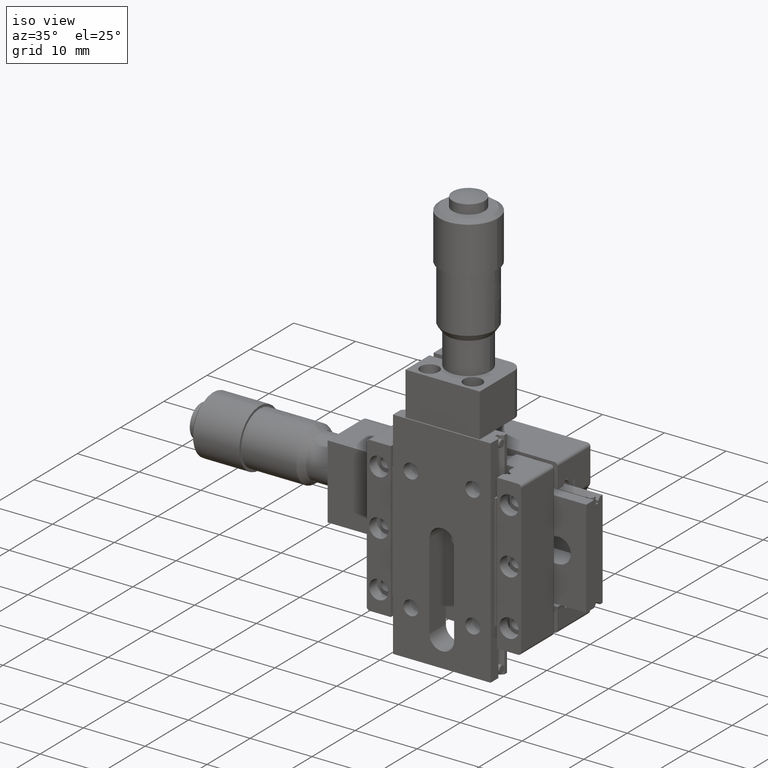
[diagram: clean part render]
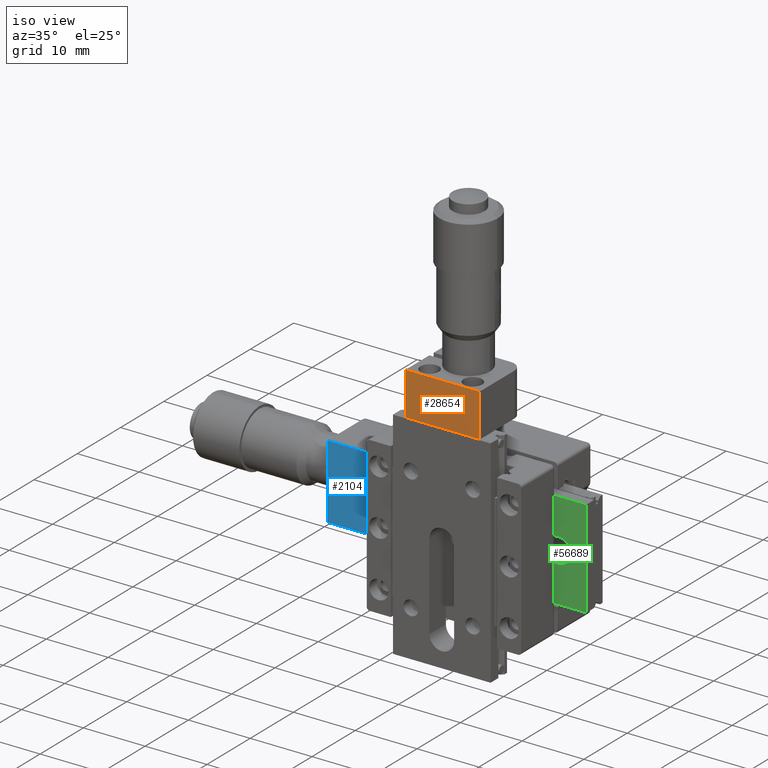
[diagram: same view with three faces highlighted in distinct colors, each labeled with its STEP entity id]
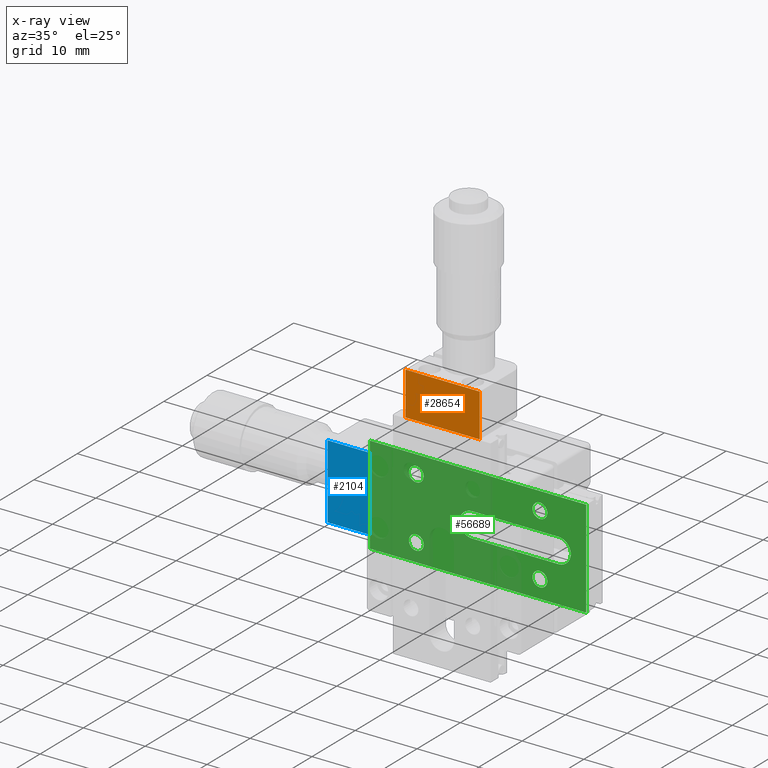
[diagram: x-ray of the same camera — body ghosted, the three highlighted faces saturated]
A machine part, iso view with three faces highlighted in distinct colors.
The next image is the same camera in x-ray (body ghosted, the three faces saturated) — at least one of them is partly hidden behind the body in this view.
Their STEP definitions:

[orange] entity #28654 — the highlighted planar face has unit normal (0, 1, -0).
#1008 = ORIENTED_EDGE ( 'NONE', *, *, #50982, .T. ) ;
#2141 = VECTOR ( 'NONE', #4461, 1000.000000000000000 ) ;
#3374 = CARTESIAN_POINT ( 'NONE',  ( 6.000000000000872200, 0.1999999999999917700, 17.50000000000000000 ) ) ;
#4461 = DIRECTION ( 'NONE',  ( -1.000000000000000000, 6.111896442571320000E-016, 5.551115123125776800E-016 ) ) ;
#5970 = EDGE_LOOP ( 'NONE', ( #27107, #18701, #9006, #1008 ) ) ;
#8408 = CARTESIAN_POINT ( 'NONE',  ( -5.999999999999139400, 0.2000000000000076400, 24.50000000000000000 ) ) ;
#9006 = ORIENTED_EDGE ( 'NONE', *, *, #17663, .F. ) ;
#12023 = CARTESIAN_POINT ( 'NONE',  ( 6.000000000000872200, 0.1999999999999917700, 17.50000000000000000 ) ) ;
#12375 = CARTESIAN_POINT ( 'NONE',  ( -5.999999999999128700, 0.2000000000000064200, 17.50000000000000000 ) ) ;
#16124 = VECTOR ( 'NONE', #50874, 1000.000000000000000 ) ;
#17001 = LINE ( 'NONE', #12375, #16124 ) ;
#17663 = EDGE_CURVE ( 'NONE', #21009, #51436, #22227, .T. ) ;
#18078 = LINE ( 'NONE', #12023, #35946 ) ;
#18701 = ORIENTED_EDGE ( 'NONE', *, *, #59726, .F. ) ;
#19355 = DIRECTION ( 'NONE',  ( 6.111896442571317000E-016, 1.000000000000000000, -5.082140893937402600E-016 ) ) ;
#19786 = CARTESIAN_POINT ( 'NONE',  ( -5.999999999999128700, 0.2000000000000064200, 17.50000000000000000 ) ) ;
#19823 = DIRECTION ( 'NONE',  ( 1.000000000000000000, -6.111896442571320000E-016, -5.551115123125776800E-016 ) ) ;
#21009 = VERTEX_POINT ( 'NONE', #32264 ) ;
#22227 = LINE ( 'NONE', #3374, #40044 ) ;
#27107 = ORIENTED_EDGE ( 'NONE', *, *, #62917, .T. ) ;
#28654 = ADVANCED_FACE ( 'NONE', ( #30881 ), #40952, .F. ) ;
#29341 = LINE ( 'NONE', #42016, #2141 ) ;
#30881 = FACE_OUTER_BOUND ( 'NONE', #5970, .T. ) ;
#32264 = CARTESIAN_POINT ( 'NONE',  ( 6.000000000000872200, 0.1999999999999917700, 17.50000000000000000 ) ) ;
#35261 = CARTESIAN_POINT ( 'NONE',  ( 6.000000000000872200, 0.1999999999999917700, 17.50000000000000000 ) ) ;
#35946 = VECTOR ( 'NONE', #38890, 1000.000000000000000 ) ;
#38199 = VERTEX_POINT ( 'NONE', #8408 ) ;
#38890 = DIRECTION ( 'NONE',  ( -2.775557561562896800E-016, -1.142172911347805800E-016, 1.000000000000000000 ) ) ;
#40044 = VECTOR ( 'NONE', #41421, 1000.000000000000000 ) ;
#40952 = PLANE ( 'NONE',  #63627 ) ;
#41421 = DIRECTION ( 'NONE',  ( -1.000000000000000000, 6.111896442571320000E-016, 5.551115123125776800E-016 ) ) ;
#42016 = CARTESIAN_POINT ( 'NONE',  ( 6.000000000000860600, 0.2000000000000051500, 24.50000000000000000 ) ) ;
#50874 = DIRECTION ( 'NONE',  ( -2.775557561562896800E-016, -1.142172911347805800E-016, 1.000000000000000000 ) ) ;
#50982 = EDGE_CURVE ( 'NONE', #21009, #62535, #18078, .T. ) ;
#51436 = VERTEX_POINT ( 'NONE', #19786 ) ;
#59726 = EDGE_CURVE ( 'NONE', #51436, #38199, #17001, .T. ) ;
#60218 = CARTESIAN_POINT ( 'NONE',  ( 6.000000000000860600, 0.2000000000000051500, 24.50000000000000000 ) ) ;
#62535 = VERTEX_POINT ( 'NONE', #60218 ) ;
#62917 = EDGE_CURVE ( 'NONE', #62535, #38199, #29341, .T. ) ;
#63627 = AXIS2_PLACEMENT_3D ( 'NONE', #35261, #19355, #19823 ) ;

[blue] entity #2104 — the highlighted planar face has unit normal (0, 1, 0).
#610 = DIRECTION ( 'NONE',  ( -5.551115123125776800E-016, 8.627508404916919900E-016, -1.000000000000000000 ) ) ;
#1659 = EDGE_CURVE ( 'NONE', #42289, #34482, #19737, .T. ) ;
#2104 = ADVANCED_FACE ( 'NONE', ( #6884 ), #29514, .F. ) ;
#6173 = VERTEX_POINT ( 'NONE', #19605 ) ;
#6884 = FACE_OUTER_BOUND ( 'NONE', #19440, .T. ) ;
#8687 = EDGE_CURVE ( 'NONE', #34482, #68753, #18601, .T. ) ;
#12222 = LINE ( 'NONE', #60789, #64954 ) ;
#12934 = DIRECTION ( 'NONE',  ( 3.854263915582015400E-016, 1.000000000000000000, 8.627508404916917900E-016 ) ) ;
#18226 = CARTESIAN_POINT ( 'NONE',  ( -17.49999999999914000, 8.600000000000015600, 6.000000000000874000 ) ) ;
#18601 = LINE ( 'NONE', #33190, #33865 ) ;
#19440 = EDGE_LOOP ( 'NONE', ( #25942, #43772, #46915, #55277 ) ) ;
#19605 = CARTESIAN_POINT ( 'NONE',  ( -17.49999999999914000, 8.600000000000033400, -5.999999999999126900 ) ) ;
#19737 = LINE ( 'NONE', #66222, #32482 ) ;
#24513 = EDGE_CURVE ( 'NONE', #42289, #6173, #25935, .T. ) ;
#25935 = LINE ( 'NONE', #47043, #51472 ) ;
#25942 = ORIENTED_EDGE ( 'NONE', *, *, #8687, .T. ) ;
#28445 = EDGE_CURVE ( 'NONE', #6173, #68753, #12222, .T. ) ;
#29514 = PLANE ( 'NONE',  #58976 ) ;
#32054 = CARTESIAN_POINT ( 'NONE',  ( -24.49999999999914000, 8.600000000000028100, 6.000000000000862400 ) ) ;
#32482 = VECTOR ( 'NONE', #44391, 1000.000000000000000 ) ;
#33190 = CARTESIAN_POINT ( 'NONE',  ( -24.49999999999914000, 8.600000000000028100, 6.000000000000862400 ) ) ;
#33865 = VECTOR ( 'NONE', #610, 1000.000000000000000 ) ;
#34482 = VERTEX_POINT ( 'NONE', #32054 ) ;
#41811 = DIRECTION ( 'NONE',  ( -5.551115123125776800E-016, 8.627508404916919900E-016, -1.000000000000000000 ) ) ;
#42289 = VERTEX_POINT ( 'NONE', #18226 ) ;
#43772 = ORIENTED_EDGE ( 'NONE', *, *, #28445, .F. ) ;
#44391 = DIRECTION ( 'NONE',  ( -1.000000000000000000, -1.955095636017512700E-016, -2.220446049250319500E-016 ) ) ;
#46915 = ORIENTED_EDGE ( 'NONE', *, *, #24513, .F. ) ;
#47043 = CARTESIAN_POINT ( 'NONE',  ( -17.49999999999914000, 8.600000000000015600, 6.000000000000874000 ) ) ;
#50351 = DIRECTION ( 'NONE',  ( -1.000000000000000000, -1.955095636017512700E-016, -2.220446049250319500E-016 ) ) ;
#50857 = CARTESIAN_POINT ( 'NONE',  ( -24.49999999999914000, 8.600000000000033400, -5.999999999999137600 ) ) ;
#50973 = DIRECTION ( 'NONE',  ( 5.551115123125776800E-016, -8.627508404916919900E-016, 1.000000000000000000 ) ) ;
#51472 = VECTOR ( 'NONE', #41811, 1000.000000000000000 ) ;
#55277 = ORIENTED_EDGE ( 'NONE', *, *, #1659, .T. ) ;
#58976 = AXIS2_PLACEMENT_3D ( 'NONE', #67781, #12934, #50973 ) ;
#60789 = CARTESIAN_POINT ( 'NONE',  ( -17.49999999999914000, 8.600000000000033400, -5.999999999999126900 ) ) ;
#64954 = VECTOR ( 'NONE', #50351, 1000.000000000000000 ) ;
#66222 = CARTESIAN_POINT ( 'NONE',  ( -17.49999999999914000, 8.600000000000015600, 6.000000000000874000 ) ) ;
#67781 = CARTESIAN_POINT ( 'NONE',  ( -17.49999999999914000, 8.600000000000015600, 6.000000000000874000 ) ) ;
#68753 = VERTEX_POINT ( 'NONE', #50857 ) ;

[green] entity #56689 — the highlighted planar face has unit normal (-0, 1, 0).
#176 = VERTEX_POINT ( 'NONE', #33581 ) ;
#1333 = VECTOR ( 'NONE', #59519, 1000.000000000000000 ) ;
#1708 = CARTESIAN_POINT ( 'NONE',  ( 10.00000000000087000, 8.400000000000050100, 5.000000000000000000 ) ) ;
#1931 = VERTEX_POINT ( 'NONE', #6553 ) ;
#1944 = ORIENTED_EDGE ( 'NONE', *, *, #30912, .F. ) ;
#2223 = CARTESIAN_POINT ( 'NONE',  ( -0.9999999999991300300, 8.400000000000027000, -2.000000000000000400 ) ) ;
#2880 = DIRECTION ( 'NONE',  ( -1.264991082945907200E-015, -1.000000000000000000, -2.515611962345600400E-016 ) ) ;
#3918 = DIRECTION ( 'NONE',  ( -1.264991082945907200E-015, -1.000000000000000000, -2.515611962345600400E-016 ) ) ;
#4095 = DIRECTION ( 'NONE',  ( -1.264991082945907200E-015, -1.000000000000000000, -2.515611962345600400E-016 ) ) ;
#4383 = LINE ( 'NONE', #34506, #29008 ) ;
#4459 = DIRECTION ( 'NONE',  ( -1.264991082945907200E-015, -1.000000000000000000, -2.515611962345600400E-016 ) ) ;
#4992 = VERTEX_POINT ( 'NONE', #32957 ) ;
#5041 = EDGE_CURVE ( 'NONE', #61704, #8721, #7967, .T. ) ;
#5046 = CARTESIAN_POINT ( 'NONE',  ( -2.999999999999129600, 8.400000000000028800, -4.304098479295941300E-016 ) ) ;
#5117 = CARTESIAN_POINT ( 'NONE',  ( 11.20000000000087000, 8.400000000000041200, -5.000000000000000000 ) ) ;
#6553 = CARTESIAN_POINT ( 'NONE',  ( -11.19999999999913400, 8.400000000000005700, -5.000000000000003600 ) ) ;
#6880 = DIRECTION ( 'NONE',  ( -1.264991082945907200E-015, -1.000000000000000000, -2.515611962345600400E-016 ) ) ;
#6945 = DIRECTION ( 'NONE',  ( 1.000000000000000000, 1.066477268766921900E-015, 9.293161478447208900E-017 ) ) ;
#7827 = VERTEX_POINT ( 'NONE', #2223 ) ;
#7967 = LINE ( 'NONE', #11106, #66593 ) ;
#8577 = ORIENTED_EDGE ( 'NONE', *, *, #10067, .F. ) ;
#8721 = VERTEX_POINT ( 'NONE', #39579 ) ;
#10067 = EDGE_CURVE ( 'NONE', #51547, #7827, #65667, .T. ) ;
#10167 = AXIS2_PLACEMENT_3D ( 'NONE', #32868, #44064, #11489 ) ;
#10329 = DIRECTION ( 'NONE',  ( 1.000000000000000000, 1.066477268766921900E-015, 2.682842974879733100E-031 ) ) ;
#10748 = CIRCLE ( 'NONE', #37569, 1.999999999999999600 ) ;
#11106 = CARTESIAN_POINT ( 'NONE',  ( -17.54999999999913700, 8.400000000000005700, -7.900000000000000400 ) ) ;
#11158 = VERTEX_POINT ( 'NONE', #65799 ) ;
#11464 = DIRECTION ( 'NONE',  ( 1.000000000000000000, 1.445602896647339500E-015, 0.0000000000000000000 ) ) ;
#11489 = DIRECTION ( 'NONE',  ( 1.000000000000000000, 1.445602896647339500E-015, 0.0000000000000000000 ) ) ;
#11697 = CARTESIAN_POINT ( 'NONE',  ( -0.9999999999991300300, 8.400000000000027000, -9.083761207752584700E-016 ) ) ;
#11881 = CIRCLE ( 'NONE', #58547, 1.199999999999999700 ) ;
#13684 = ORIENTED_EDGE ( 'NONE', *, *, #29733, .F. ) ;
#14376 = ORIENTED_EDGE ( 'NONE', *, *, #5041, .T. ) ;
#14774 = CARTESIAN_POINT ( 'NONE',  ( 8.800000000000871100, 8.400000000000051900, 4.999999999999993800 ) ) ;
#15547 = FACE_BOUND ( 'NONE', #41128, .T. ) ;
#16154 = ORIENTED_EDGE ( 'NONE', *, *, #33558, .F. ) ;
#16308 = EDGE_CURVE ( 'NONE', #67627, #1931, #21930, .T. ) ;
#16562 = EDGE_LOOP ( 'NONE', ( #62001, #8577, #28589, #46146, #40506 ) ) ;
#16849 = AXIS2_PLACEMENT_3D ( 'NONE', #68982, #3918, #41948 ) ;
#17140 = CARTESIAN_POINT ( 'NONE',  ( 10.00000000000086900, 8.400000000000039400, -5.000000000000000000 ) ) ;
#19203 = AXIS2_PLACEMENT_3D ( 'NONE', #53367, #20820, #10329 ) ;
#19892 = CARTESIAN_POINT ( 'NONE',  ( 17.50000000000087000, 8.400000000000048300, 7.900000000000000400 ) ) ;
#20550 = EDGE_CURVE ( 'NONE', #55601, #176, #47454, .T. ) ;
#20820 = DIRECTION ( 'NONE',  ( -1.066477268766921900E-015, 1.000000000000000000, 2.515611962345600400E-016 ) ) ;
#20833 = EDGE_CURVE ( 'NONE', #48000, #21354, #51655, .T. ) ;
#20883 = CARTESIAN_POINT ( 'NONE',  ( 13.00000000000087000, 8.400000000000050100, 8.673617379884072000E-016 ) ) ;
#21262 = VERTEX_POINT ( 'NONE', #62841 ) ;
#21354 = VERTEX_POINT ( 'NONE', #5117 ) ;
#21496 = EDGE_CURVE ( 'NONE', #7827, #55601, #4383, .T. ) ;
#21930 = CIRCLE ( 'NONE', #49854, 1.199999999999999700 ) ;
#22271 = DIRECTION ( 'NONE',  ( 1.000000000000000000, 1.066477268766921900E-015, 2.682842974879733100E-031 ) ) ;
#24031 = FACE_BOUND ( 'NONE', #59979, .T. ) ;
#24202 = CARTESIAN_POINT ( 'NONE',  ( -8.799999999999135600, 8.400000000000005700, -4.999999999999997300 ) ) ;
#24876 = EDGE_LOOP ( 'NONE', ( #55636, #37966 ) ) ;
#26401 = CARTESIAN_POINT ( 'NONE',  ( -9.999999999999134900, 8.400000000000003900, -4.999999999999997300 ) ) ;
#28589 = ORIENTED_EDGE ( 'NONE', *, *, #68594, .F. ) ;
#28616 = EDGE_LOOP ( 'NONE', ( #62158, #14376, #48319, #58065 ) ) ;
#28844 = DIRECTION ( 'NONE',  ( -1.000000000000000000, -1.066477268766921900E-015, -1.548860246407866300E-016 ) ) ;
#28858 = CIRCLE ( 'NONE', #65847, 1.199999999999999700 ) ;
#28898 = VERTEX_POINT ( 'NONE', #39713 ) ;
#29008 = VECTOR ( 'NONE', #6945, 1000.000000000000000 ) ;
#29733 = EDGE_CURVE ( 'NONE', #21354, #48000, #63144, .T. ) ;
#29843 = LINE ( 'NONE', #55084, #37550 ) ;
#30260 = LINE ( 'NONE', #38358, #1333 ) ;
#30912 = EDGE_CURVE ( 'NONE', #21262, #70087, #48289, .T. ) ;
#31860 = CARTESIAN_POINT ( 'NONE',  ( -0.9999999999991300300, 8.400000000000027000, -9.083761207752584700E-016 ) ) ;
#32185 = PLANE ( 'NONE',  #19203 ) ;
#32594 = FACE_OUTER_BOUND ( 'NONE', #28616, .T. ) ;
#32700 = VECTOR ( 'NONE', #57877, 1000.000000000000000 ) ;
#32813 = EDGE_LOOP ( 'NONE', ( #13684, #59669 ) ) ;
#32868 = CARTESIAN_POINT ( 'NONE',  ( -9.999999999999133100, 8.400000000000014600, 5.000000000000002700 ) ) ;
#32957 = CARTESIAN_POINT ( 'NONE',  ( -17.49999999999913300, 8.400000000000002100, 7.900000000000000400 ) ) ;
#33400 = FACE_BOUND ( 'NONE', #24876, .T. ) ;
#33558 = EDGE_CURVE ( 'NONE', #70087, #21262, #51386, .T. ) ;
#33581 = CARTESIAN_POINT ( 'NONE',  ( 13.00000000000087000, 8.400000000000037700, 2.000000000000000900 ) ) ;
#33639 = AXIS2_PLACEMENT_3D ( 'NONE', #60150, #66990, #61763 ) ;
#34506 = CARTESIAN_POINT ( 'NONE',  ( 13.00000000000087000, 8.400000000000051900, -1.999999999999999100 ) ) ;
#34982 = AXIS2_PLACEMENT_3D ( 'NONE', #17140, #44260, #11464 ) ;
#36087 = LINE ( 'NONE', #19892, #32700 ) ;
#37123 = DIRECTION ( 'NONE',  ( 1.000000000000000000, 1.445602896647339500E-015, 0.0000000000000000000 ) ) ;
#37299 = EDGE_CURVE ( 'NONE', #63273, #28898, #28858, .T. ) ;
#37444 = EDGE_CURVE ( 'NONE', #1931, #67627, #11881, .T. ) ;
#37550 = VECTOR ( 'NONE', #28844, 1000.000000000000000 ) ;
#37569 = AXIS2_PLACEMENT_3D ( 'NONE', #11697, #6880, #55853 ) ;
#37966 = ORIENTED_EDGE ( 'NONE', *, *, #37444, .F. ) ;
#38358 = CARTESIAN_POINT ( 'NONE',  ( -17.49999999999913300, 8.400000000000005700, -7.900000000000000400 ) ) ;
#38605 = ORIENTED_EDGE ( 'NONE', *, *, #61532, .F. ) ;
#39579 = CARTESIAN_POINT ( 'NONE',  ( 17.50000000000087000, 8.400000000000051900, -7.900000000000000400 ) ) ;
#39713 = CARTESIAN_POINT ( 'NONE',  ( 11.20000000000087100, 8.400000000000051900, 5.000000000000000000 ) ) ;
#40506 = ORIENTED_EDGE ( 'NONE', *, *, #20550, .F. ) ;
#41128 = EDGE_LOOP ( 'NONE', ( #16154, #1944 ) ) ;
#41948 = DIRECTION ( 'NONE',  ( 1.000000000000000000, 1.445602896647339500E-015, 0.0000000000000000000 ) ) ;
#43241 = CIRCLE ( 'NONE', #55082, 1.199999999999999700 ) ;
#44064 = DIRECTION ( 'NONE',  ( -1.264991082945907200E-015, -1.000000000000000000, -2.515611962345600400E-016 ) ) ;
#44260 = DIRECTION ( 'NONE',  ( -1.264991082945907200E-015, -1.000000000000000000, -2.515611962345600400E-016 ) ) ;
#45338 = FACE_BOUND ( 'NONE', #16562, .T. ) ;
#45714 = DIRECTION ( 'NONE',  ( -1.264991082945907200E-015, -1.000000000000000000, -2.515611962345600400E-016 ) ) ;
#46146 = ORIENTED_EDGE ( 'NONE', *, *, #52179, .F. ) ;
#46246 = DIRECTION ( 'NONE',  ( 1.000000000000000000, 1.445602896647339500E-015, 0.0000000000000000000 ) ) ;
#47454 = CIRCLE ( 'NONE', #63647, 2.000000000000000000 ) ;
#47801 = DIRECTION ( 'NONE',  ( -1.264991082945907200E-015, -1.000000000000000000, -2.515611962345600400E-016 ) ) ;
#47919 = CARTESIAN_POINT ( 'NONE',  ( -8.799999999999133800, 8.400000000000016300, 5.000000000000002700 ) ) ;
#48000 = VERTEX_POINT ( 'NONE', #57660 ) ;
#48289 = CIRCLE ( 'NONE', #33639, 1.199999999999999700 ) ;
#48319 = ORIENTED_EDGE ( 'NONE', *, *, #49758, .F. ) ;
#49758 = EDGE_CURVE ( 'NONE', #11158, #8721, #36087, .T. ) ;
#49854 = AXIS2_PLACEMENT_3D ( 'NONE', #57158, #51707, #46246 ) ;
#49966 = CARTESIAN_POINT ( 'NONE',  ( -17.54999999999913700, 8.400000000000002100, 7.900000000000000400 ) ) ;
#50411 = DIRECTION ( 'NONE',  ( 1.000000000000000000, 1.066477268766921900E-015, 2.682842974879733100E-031 ) ) ;
#50621 = LINE ( 'NONE', #49966, #56522 ) ;
#51386 = CIRCLE ( 'NONE', #10167, 1.199999999999999700 ) ;
#51547 = VERTEX_POINT ( 'NONE', #5046 ) ;
#51655 = CIRCLE ( 'NONE', #16849, 1.199999999999999700 ) ;
#51707 = DIRECTION ( 'NONE',  ( -1.264991082945907200E-015, -1.000000000000000000, -2.515611962345600400E-016 ) ) ;
#52179 = EDGE_CURVE ( 'NONE', #176, #70149, #29843, .T. ) ;
#52587 = CARTESIAN_POINT ( 'NONE',  ( -17.49999999999913300, 8.400000000000005700, -7.900000000000000400 ) ) ;
#53367 = CARTESIAN_POINT ( 'NONE',  ( -17.54999999999913700, 8.400000000000005700, -7.900000000000000400 ) ) ;
#55082 = AXIS2_PLACEMENT_3D ( 'NONE', #67504, #2880, #57069 ) ;
#55084 = CARTESIAN_POINT ( 'NONE',  ( 13.00000000000087000, 8.400000000000037700, 2.000000000000000900 ) ) ;
#55601 = VERTEX_POINT ( 'NONE', #57688 ) ;
#55636 = ORIENTED_EDGE ( 'NONE', *, *, #16308, .F. ) ;
#55853 = DIRECTION ( 'NONE',  ( 1.000000000000000000, 8.673617379884037400E-016, 2.888894916580854200E-031 ) ) ;
#56445 = AXIS2_PLACEMENT_3D ( 'NONE', #31860, #47801, #69380 ) ;
#56522 = VECTOR ( 'NONE', #50411, 1000.000000000000000 ) ;
#56626 = DIRECTION ( 'NONE',  ( 1.000000000000000000, 1.445602896647339500E-015, 0.0000000000000000000 ) ) ;
#56689 = ADVANCED_FACE ( 'NONE', ( #63181, #15547, #45338, #33400, #24031, #32594 ), #32185, .F. ) ;
#56820 = ORIENTED_EDGE ( 'NONE', *, *, #37299, .F. ) ;
#57069 = DIRECTION ( 'NONE',  ( 1.000000000000000000, 1.445602896647339500E-015, 0.0000000000000000000 ) ) ;
#57158 = CARTESIAN_POINT ( 'NONE',  ( -9.999999999999134900, 8.400000000000003900, -4.999999999999997300 ) ) ;
#57660 = CARTESIAN_POINT ( 'NONE',  ( 8.800000000000869300, 8.400000000000041200, -5.000000000000006200 ) ) ;
#57688 = CARTESIAN_POINT ( 'NONE',  ( 13.00000000000087000, 8.400000000000051900, -1.999999999999999100 ) ) ;
#57877 = DIRECTION ( 'NONE',  ( 0.0000000000000000000, 2.515611962345600400E-016, -1.000000000000000000 ) ) ;
#58065 = ORIENTED_EDGE ( 'NONE', *, *, #69435, .F. ) ;
#58547 = AXIS2_PLACEMENT_3D ( 'NONE', #26401, #4095, #37123 ) ;
#58865 = DIRECTION ( 'NONE',  ( 1.000000000000000000, 8.673617379884035500E-016, 2.888894916580853800E-031 ) ) ;
#59309 = CARTESIAN_POINT ( 'NONE',  ( -0.9999999999991295900, 8.400000000000027000, 1.999999999999998700 ) ) ;
#59519 = DIRECTION ( 'NONE',  ( 0.0000000000000000000, -2.515611962345600400E-016, 1.000000000000000000 ) ) ;
#59669 = ORIENTED_EDGE ( 'NONE', *, *, #20833, .F. ) ;
#59979 = EDGE_LOOP ( 'NONE', ( #38605, #56820 ) ) ;
#60150 = CARTESIAN_POINT ( 'NONE',  ( -9.999999999999133100, 8.400000000000014600, 5.000000000000002700 ) ) ;
#61532 = EDGE_CURVE ( 'NONE', #28898, #63273, #43241, .T. ) ;
#61704 = VERTEX_POINT ( 'NONE', #52587 ) ;
#61763 = DIRECTION ( 'NONE',  ( 1.000000000000000000, 1.445602896647339500E-015, 0.0000000000000000000 ) ) ;
#62001 = ORIENTED_EDGE ( 'NONE', *, *, #21496, .F. ) ;
#62158 = ORIENTED_EDGE ( 'NONE', *, *, #62456, .F. ) ;
#62456 = EDGE_CURVE ( 'NONE', #61704, #4992, #30260, .T. ) ;
#62841 = CARTESIAN_POINT ( 'NONE',  ( -11.19999999999913200, 8.400000000000016300, 4.999999999999996400 ) ) ;
#63144 = CIRCLE ( 'NONE', #34982, 1.199999999999999700 ) ;
#63181 = FACE_BOUND ( 'NONE', #32813, .T. ) ;
#63273 = VERTEX_POINT ( 'NONE', #14774 ) ;
#63647 = AXIS2_PLACEMENT_3D ( 'NONE', #20883, #4459, #58865 ) ;
#65667 = CIRCLE ( 'NONE', #56445, 1.999999999999999600 ) ;
#65799 = CARTESIAN_POINT ( 'NONE',  ( 17.50000000000087000, 8.400000000000048300, 7.900000000000000400 ) ) ;
#65847 = AXIS2_PLACEMENT_3D ( 'NONE', #1708, #45714, #56626 ) ;
#66593 = VECTOR ( 'NONE', #22271, 1000.000000000000000 ) ;
#66990 = DIRECTION ( 'NONE',  ( -1.264991082945907200E-015, -1.000000000000000000, -2.515611962345600400E-016 ) ) ;
#67504 = CARTESIAN_POINT ( 'NONE',  ( 10.00000000000087000, 8.400000000000050100, 5.000000000000000000 ) ) ;
#67627 = VERTEX_POINT ( 'NONE', #24202 ) ;
#68594 = EDGE_CURVE ( 'NONE', #70149, #51547, #10748, .T. ) ;
#68982 = CARTESIAN_POINT ( 'NONE',  ( 10.00000000000086900, 8.400000000000039400, -5.000000000000000000 ) ) ;
#69380 = DIRECTION ( 'NONE',  ( 1.000000000000000000, 8.673617379884037400E-016, 2.888894916580854200E-031 ) ) ;
#69435 = EDGE_CURVE ( 'NONE', #4992, #11158, #50621, .T. ) ;
#70087 = VERTEX_POINT ( 'NONE', #47919 ) ;
#70149 = VERTEX_POINT ( 'NONE', #59309 ) ;